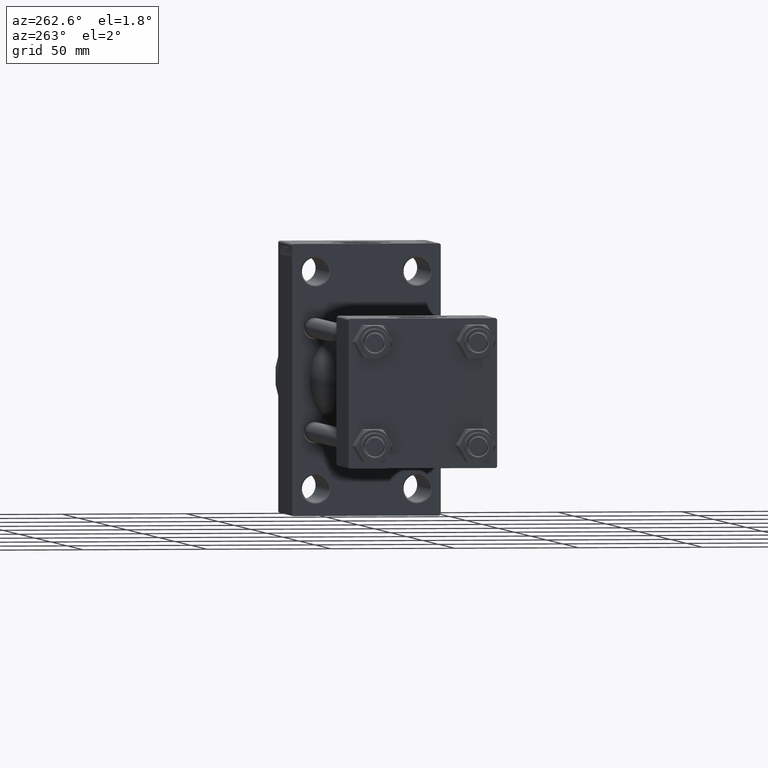
[diagram: clean part render]
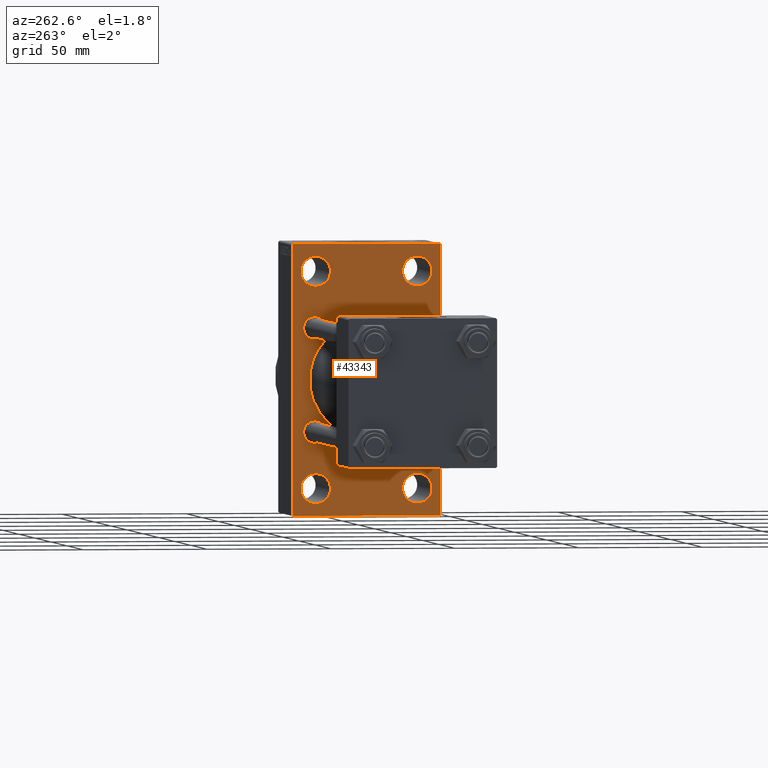
[diagram: same view with one face highlighted and labeled with its STEP entity id]
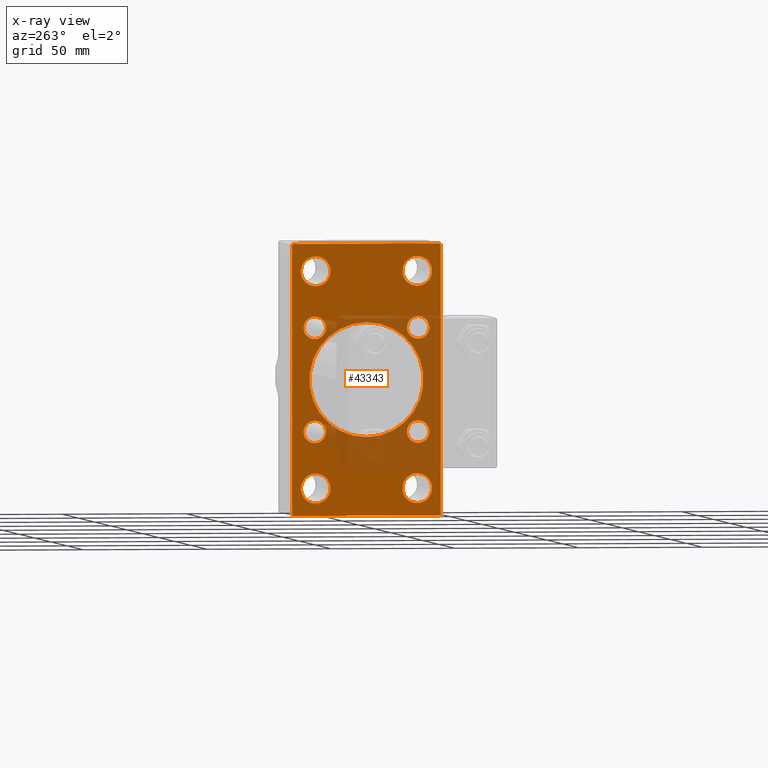
[diagram: x-ray of the same camera — body ghosted, the highlighted face saturated]
A machine part, auxiliary view. The second image highlights one B-rep face of the part: STEP entity #43343.
The next image is the same camera in x-ray: the body ghosted, the highlighted face saturated — about 28% of this face is hidden behind the body in this view.
In plain terms, the highlighted planar face has unit normal (-1, 0, 0).
Its self-contained STEP definition (entity closure, byte-faithful):
#171 = DIRECTION ( 'NONE',  ( 0.000000000000000000, 0.000000000000000000, 1.000000000000000000 ) ) ;
#345 = EDGE_CURVE ( 'NONE', #29232, #10350, #39507, .T. ) ;
#449 = CARTESIAN_POINT ( 'NONE',  ( 175.0000000000000284, -42.00000000000011369, 41.99999999999982236 ) ) ;
#450 = ORIENTED_EDGE ( 'NONE', *, *, #26110, .T. ) ;
#729 = CARTESIAN_POINT ( 'NONE',  ( 175.0000000000000284, -20.84999999999999076, -25.35000000000001208 ) ) ;
#839 = DIRECTION ( 'NONE',  ( 1.000000000000000000, -0.000000000000000000, 0.000000000000000000 ) ) ;
#892 = ORIENTED_EDGE ( 'NONE', *, *, #31131, .T. ) ;
#948 = DIRECTION ( 'NONE',  ( 0.000000000000000000, 0.000000000000000000, -1.000000000000000000 ) ) ;
#1075 = EDGE_CURVE ( 'NONE', #43916, #27153, #28132, .T. ) ;
#1077 = CARTESIAN_POINT ( 'NONE',  ( 175.0000000000000284, 20.50000000000000000, 43.50000000000000000 ) ) ;
#1102 = CARTESIAN_POINT ( 'NONE',  ( 175.0000000000000284, -20.84999999999999076, 25.35000000000001208 ) ) ;
#1122 = DIRECTION ( 'NONE',  ( 1.000000000000000000, -0.000000000000000000, 0.000000000000000000 ) ) ;
#1384 = ORIENTED_EDGE ( 'NONE', *, *, #38613, .F. ) ;
#1538 = CARTESIAN_POINT ( 'NONE',  ( 175.0000000000000284, -20.50000000000000000, -43.50000000000000000 ) ) ;
#1701 = ORIENTED_EDGE ( 'NONE', *, *, #45945, .F. ) ;
#2193 = VECTOR ( 'NONE', #8236, 1000.000000000000114 ) ;
#2218 = CARTESIAN_POINT ( 'NONE',  ( 175.0000000000000284, -20.50000000000000000, 49.49999999999983658 ) ) ;
#2221 = CIRCLE ( 'NONE', #35770, 4.500000000000007105 ) ;
#2291 = EDGE_LOOP ( 'NONE', ( #24079, #39312 ) ) ;
#2363 = ORIENTED_EDGE ( 'NONE', *, *, #24544, .T. ) ;
#2405 = CIRCLE ( 'NONE', #26065, 4.500000000000007105 ) ;
#2905 = CARTESIAN_POINT ( 'NONE',  ( 175.0000000000000284, -29.50000000000002842, 54.50000000000000000 ) ) ;
#3076 = LINE ( 'NONE', #6645, #25219 ) ;
#3255 = CIRCLE ( 'NONE', #7037, 5.999999999999838352 ) ;
#3401 = CARTESIAN_POINT ( 'NONE',  ( 175.0000000000000284, 2.146024240737016609E-16, -23.00000000000000000 ) ) ;
#3824 = CIRCLE ( 'NONE', #19868, 4.500000000000007105 ) ;
#4025 = CARTESIAN_POINT ( 'NONE',  ( 175.0000000000000284, 20.84999999999999787, -16.34999999999999432 ) ) ;
#4057 = CARTESIAN_POINT ( 'NONE',  ( 175.0000000000000284, 20.50000000000000000, 37.50000000000015632 ) ) ;
#4230 = FACE_BOUND ( 'NONE', #35631, .T. ) ;
#4266 = DIRECTION ( 'NONE',  ( -0.000000000000000000, 0.7071067811865450192, 0.7071067811865500152 ) ) ;
#4279 = DIRECTION ( 'NONE',  ( 0.000000000000000000, 0.000000000000000000, 1.000000000000000000 ) ) ;
#4286 = DIRECTION ( 'NONE',  ( 0.000000000000000000, 0.000000000000000000, 1.000000000000000000 ) ) ;
#4469 = CARTESIAN_POINT ( 'NONE',  ( 175.0000000000000284, 20.84999999999999787, -20.85000000000000142 ) ) ;
#5157 = FACE_BOUND ( 'NONE', #2291, .T. ) ;
#5417 = CIRCLE ( 'NONE', #13042, 4.500000000000007105 ) ;
#5539 = CARTESIAN_POINT ( 'NONE',  ( 175.0000000000000284, 29.99999999999999645, 54.49999999999999289 ) ) ;
#5849 = CARTESIAN_POINT ( 'NONE',  ( 175.0000000000000284, -2.602085213965210642E-15, 23.00000000000000000 ) ) ;
#5926 = VECTOR ( 'NONE', #11937, 1000.000000000000000 ) ;
#5956 = AXIS2_PLACEMENT_3D ( 'NONE', #1538, #839, #37851 ) ;
#6259 = LINE ( 'NONE', #25122, #16854 ) ;
#6373 = EDGE_CURVE ( 'NONE', #30341, #30819, #37384, .T. ) ;
#6409 = CIRCLE ( 'NONE', #14080, 5.999999999999838352 ) ;
#6645 = CARTESIAN_POINT ( 'NONE',  ( 175.0000000000000284, 29.99999999999999645, 54.49999999999999289 ) ) ;
#6792 = DIRECTION ( 'NONE',  ( 1.000000000000000000, -0.000000000000000000, 0.000000000000000000 ) ) ;
#6909 = EDGE_CURVE ( 'NONE', #38296, #31085, #43723, .T. ) ;
#7037 = AXIS2_PLACEMENT_3D ( 'NONE', #36455, #28119, #9969 ) ;
#7234 = CARTESIAN_POINT ( 'NONE',  ( 175.0000000000000284, -20.84999999999999076, -20.85000000000000497 ) ) ;
#7378 = LINE ( 'NONE', #449, #44192 ) ;
#7461 = AXIS2_PLACEMENT_3D ( 'NONE', #11712, #33432, #4286 ) ;
#7736 = VERTEX_POINT ( 'NONE', #729 ) ;
#7835 = EDGE_CURVE ( 'NONE', #44836, #24626, #32023, .T. ) ;
#8044 = EDGE_CURVE ( 'NONE', #8791, #12870, #7378, .T. ) ;
#8157 = DIRECTION ( 'NONE',  ( 0.000000000000000000, 0.000000000000000000, 1.000000000000000000 ) ) ;
#8236 = DIRECTION ( 'NONE',  ( -0.000000000000000000, -0.7071067811865474617, -0.7071067811865474617 ) ) ;
#8483 = DIRECTION ( 'NONE',  ( 0.000000000000000000, 0.000000000000000000, 1.000000000000000000 ) ) ;
#8516 = FACE_BOUND ( 'NONE', #27855, .T. ) ;
#8791 = VERTEX_POINT ( 'NONE', #35121 ) ;
#8989 = FACE_BOUND ( 'NONE', #36892, .T. ) ;
#9192 = CARTESIAN_POINT ( 'NONE',  ( 175.0000000000000284, -29.49999999999997513, -54.50000000000000000 ) ) ;
#9331 = CARTESIAN_POINT ( 'NONE',  ( 175.0000000000000284, 20.84999999999999787, 20.85000000000000142 ) ) ;
#9424 = CIRCLE ( 'NONE', #14043, 23.00000000000000000 ) ;
#9810 = DIRECTION ( 'NONE',  ( 0.000000000000000000, 0.000000000000000000, 1.000000000000000000 ) ) ;
#9969 = DIRECTION ( 'NONE',  ( 0.000000000000000000, 0.000000000000000000, 1.000000000000000000 ) ) ;
#10068 = VERTEX_POINT ( 'NONE', #12957 ) ;
#10350 = VERTEX_POINT ( 'NONE', #15078 ) ;
#11036 = VERTEX_POINT ( 'NONE', #13974 ) ;
#11219 = CARTESIAN_POINT ( 'NONE',  ( 175.0000000000000284, 29.50000000000002132, -54.49999999999999289 ) ) ;
#11449 = CIRCLE ( 'NONE', #16023, 5.999999999999838352 ) ;
#11533 = DIRECTION ( 'NONE',  ( 1.000000000000000000, -0.000000000000000000, 0.000000000000000000 ) ) ;
#11712 = CARTESIAN_POINT ( 'NONE',  ( 175.0000000000000284, 20.50000000000000000, -43.50000000000000000 ) ) ;
#11759 = DIRECTION ( 'NONE',  ( 1.000000000000000000, -0.000000000000000000, 0.000000000000000000 ) ) ;
#11937 = DIRECTION ( 'NONE',  ( 0.000000000000000000, -1.000000000000000000, -1.156482317317871478E-16 ) ) ;
#12113 = FACE_BOUND ( 'NONE', #42876, .T. ) ;
#12200 = AXIS2_PLACEMENT_3D ( 'NONE', #9331, #30841, #30348 ) ;
#12476 = DIRECTION ( 'NONE',  ( 0.000000000000000000, 0.000000000000000000, 1.000000000000000000 ) ) ;
#12564 = EDGE_CURVE ( 'NONE', #27153, #43916, #21479, .T. ) ;
#12585 = FACE_BOUND ( 'NONE', #46470, .T. ) ;
#12870 = VERTEX_POINT ( 'NONE', #2905 ) ;
#12957 = CARTESIAN_POINT ( 'NONE',  ( 175.0000000000000284, 20.50000000000000000, -49.49999999999983658 ) ) ;
#13042 = AXIS2_PLACEMENT_3D ( 'NONE', #13638, #38484, #9810 ) ;
#13279 = CARTESIAN_POINT ( 'NONE',  ( 175.0000000000000284, 20.50000000000000000, 43.50000000000000000 ) ) ;
#13638 = CARTESIAN_POINT ( 'NONE',  ( 175.0000000000000284, -20.84999999999999076, -20.85000000000000497 ) ) ;
#13974 = CARTESIAN_POINT ( 'NONE',  ( 175.0000000000000284, -20.84999999999999076, 16.34999999999999787 ) ) ;
#14043 = AXIS2_PLACEMENT_3D ( 'NONE', #37760, #30128, #19383 ) ;
#14080 = AXIS2_PLACEMENT_3D ( 'NONE', #18579, #19273, #171 ) ;
#14110 = DIRECTION ( 'NONE',  ( 0.000000000000000000, 0.000000000000000000, 1.000000000000000000 ) ) ;
#14931 = EDGE_LOOP ( 'NONE', ( #46692, #43280 ) ) ;
#14968 = CARTESIAN_POINT ( 'NONE',  ( 175.0000000000000284, 42.00000000000000711, -42.00000000000000711 ) ) ;
#15078 = CARTESIAN_POINT ( 'NONE',  ( 175.0000000000000284, -20.50000000000000000, -49.49999999999983658 ) ) ;
#15405 = AXIS2_PLACEMENT_3D ( 'NONE', #37253, #33680, #948 ) ;
#15501 = DIRECTION ( 'NONE',  ( 0.000000000000000000, -0.7071067811865352493, 0.7071067811865597852 ) ) ;
#15531 = CARTESIAN_POINT ( 'NONE',  ( 175.0000000000000284, 29.99999999999999645, -54.49999999999999289 ) ) ;
#15579 = CARTESIAN_POINT ( 'NONE',  ( 175.0000000000000284, -20.50000000000000000, -43.50000000000000000 ) ) ;
#15680 = CARTESIAN_POINT ( 'NONE',  ( 175.0000000000000284, 20.50000000000000000, 49.49999999999983658 ) ) ;
#15761 = VECTOR ( 'NONE', #17254, 1000.000000000000000 ) ;
#15979 = CARTESIAN_POINT ( 'NONE',  ( 175.0000000000000284, -20.50000000000000000, 37.50000000000015632 ) ) ;
#16023 = AXIS2_PLACEMENT_3D ( 'NONE', #15579, #11759, #26318 ) ;
#16044 = ORIENTED_EDGE ( 'NONE', *, *, #6909, .T. ) ;
#16158 = VERTEX_POINT ( 'NONE', #2218 ) ;
#16174 = VERTEX_POINT ( 'NONE', #3401 ) ;
#16374 = EDGE_CURVE ( 'NONE', #10350, #29232, #11449, .T. ) ;
#16854 = VECTOR ( 'NONE', #36581, 1000.000000000000000 ) ;
#17155 = ORIENTED_EDGE ( 'NONE', *, *, #1075, .T. ) ;
#17171 = ORIENTED_EDGE ( 'NONE', *, *, #32329, .T. ) ;
#17254 = DIRECTION ( 'NONE',  ( 0.000000000000000000, -1.000000000000000000, 1.156482317317871478E-16 ) ) ;
#17385 = ORIENTED_EDGE ( 'NONE', *, *, #16374, .T. ) ;
#18579 = CARTESIAN_POINT ( 'NONE',  ( 175.0000000000000284, -20.50000000000000000, 43.50000000000000000 ) ) ;
#18639 = EDGE_CURVE ( 'NONE', #25313, #36904, #2221, .T. ) ;
#19137 = CIRCLE ( 'NONE', #22215, 5.999999999999838352 ) ;
#19168 = DIRECTION ( 'NONE',  ( 1.000000000000000000, -0.000000000000000000, 0.000000000000000000 ) ) ;
#19273 = DIRECTION ( 'NONE',  ( 1.000000000000000000, -0.000000000000000000, 0.000000000000000000 ) ) ;
#19284 = FACE_BOUND ( 'NONE', #37986, .T. ) ;
#19383 = DIRECTION ( 'NONE',  ( 0.000000000000000000, 0.000000000000000000, -1.000000000000000000 ) ) ;
#19747 = PLANE ( 'NONE',  #30588 ) ;
#19843 = CARTESIAN_POINT ( 'NONE',  ( 175.0000000000000284, 29.49999999999996803, 54.49999999999999289 ) ) ;
#19868 = AXIS2_PLACEMENT_3D ( 'NONE', #45172, #44230, #12476 ) ;
#20152 = CARTESIAN_POINT ( 'NONE',  ( 175.0000000000000284, 29.99999999999999645, -54.00000000000002132 ) ) ;
#20460 = EDGE_CURVE ( 'NONE', #36904, #25313, #3824, .T. ) ;
#20869 = VERTEX_POINT ( 'NONE', #30328 ) ;
#21479 = CIRCLE ( 'NONE', #33677, 5.999999999999838352 ) ;
#21944 = EDGE_CURVE ( 'NONE', #41932, #30341, #3076, .T. ) ;
#22208 = ORIENTED_EDGE ( 'NONE', *, *, #45720, .T. ) ;
#22215 = AXIS2_PLACEMENT_3D ( 'NONE', #37016, #36781, #4279 ) ;
#23009 = LINE ( 'NONE', #30407, #27495 ) ;
#23242 = DIRECTION ( 'NONE',  ( 0.000000000000000000, 0.7071067811865474617, -0.7071067811865474617 ) ) ;
#24033 = CARTESIAN_POINT ( 'NONE',  ( 175.0000000000000284, -20.84999999999999076, 20.85000000000000497 ) ) ;
#24079 = ORIENTED_EDGE ( 'NONE', *, *, #42821, .T. ) ;
#24135 = VERTEX_POINT ( 'NONE', #28743 ) ;
#24169 = EDGE_CURVE ( 'NONE', #7736, #24135, #2405, .T. ) ;
#24544 = EDGE_CURVE ( 'NONE', #16174, #46821, #31425, .T. ) ;
#24626 = VERTEX_POINT ( 'NONE', #39368 ) ;
#25122 = CARTESIAN_POINT ( 'NONE',  ( 175.0000000000000284, -30.00000000000000000, 54.50000000000000000 ) ) ;
#25219 = VECTOR ( 'NONE', #43425, 1000.000000000000000 ) ;
#25313 = VERTEX_POINT ( 'NONE', #4025 ) ;
#25519 = CARTESIAN_POINT ( 'NONE',  ( 175.0000000000000284, 20.84999999999999787, -25.35000000000000853 ) ) ;
#26043 = ORIENTED_EDGE ( 'NONE', *, *, #8044, .T. ) ;
#26065 = AXIS2_PLACEMENT_3D ( 'NONE', #7234, #11533, #43996 ) ;
#26110 = EDGE_CURVE ( 'NONE', #46517, #16158, #3255, .T. ) ;
#26318 = DIRECTION ( 'NONE',  ( 0.000000000000000000, 0.000000000000000000, 1.000000000000000000 ) ) ;
#26447 = FACE_BOUND ( 'NONE', #46462, .T. ) ;
#26499 = AXIS2_PLACEMENT_3D ( 'NONE', #29445, #19168, #8157 ) ;
#26554 = VERTEX_POINT ( 'NONE', #19843 ) ;
#26888 = DIRECTION ( 'NONE',  ( 1.000000000000000000, -0.000000000000000000, 0.000000000000000000 ) ) ;
#26955 = CARTESIAN_POINT ( 'NONE',  ( 175.0000000000000284, -42.00000000000049738, -41.99999999999904077 ) ) ;
#27089 = CIRCLE ( 'NONE', #36213, 4.500000000000007105 ) ;
#27153 = VERTEX_POINT ( 'NONE', #15680 ) ;
#27157 = CARTESIAN_POINT ( 'NONE',  ( 175.0000000000000284, 0.000000000000000000, 0.000000000000000000 ) ) ;
#27201 = ORIENTED_EDGE ( 'NONE', *, *, #41785, .T. ) ;
#27345 = AXIS2_PLACEMENT_3D ( 'NONE', #13279, #6792, #27843 ) ;
#27495 = VECTOR ( 'NONE', #23242, 1000.000000000000114 ) ;
#27843 = DIRECTION ( 'NONE',  ( 0.000000000000000000, 0.000000000000000000, 1.000000000000000000 ) ) ;
#27855 = EDGE_LOOP ( 'NONE', ( #42714, #28632 ) ) ;
#28119 = DIRECTION ( 'NONE',  ( 1.000000000000000000, -0.000000000000000000, 0.000000000000000000 ) ) ;
#28132 = CIRCLE ( 'NONE', #27345, 5.999999999999838352 ) ;
#28632 = ORIENTED_EDGE ( 'NONE', *, *, #33858, .T. ) ;
#28743 = CARTESIAN_POINT ( 'NONE',  ( 175.0000000000000284, -20.84999999999999076, -16.34999999999999787 ) ) ;
#28942 = VECTOR ( 'NONE', #15501, 1000.000000000000000 ) ;
#29232 = VERTEX_POINT ( 'NONE', #32118 ) ;
#29445 = CARTESIAN_POINT ( 'NONE',  ( 175.0000000000000284, 20.84999999999999787, 20.85000000000000142 ) ) ;
#30055 = AXIS2_PLACEMENT_3D ( 'NONE', #24033, #38122, #30971 ) ;
#30128 = DIRECTION ( 'NONE',  ( 1.000000000000000000, 0.000000000000000000, 0.000000000000000000 ) ) ;
#30264 = ORIENTED_EDGE ( 'NONE', *, *, #20460, .T. ) ;
#30328 = CARTESIAN_POINT ( 'NONE',  ( 175.0000000000000284, 20.50000000000000000, -37.50000000000015632 ) ) ;
#30341 = VERTEX_POINT ( 'NONE', #20152 ) ;
#30348 = DIRECTION ( 'NONE',  ( 0.000000000000000000, 0.000000000000000000, 1.000000000000000000 ) ) ;
#30407 = CARTESIAN_POINT ( 'NONE',  ( 175.0000000000000284, 41.99999999999997158, 41.99999999999997158 ) ) ;
#30494 = FACE_OUTER_BOUND ( 'NONE', #31124, .T. ) ;
#30588 = AXIS2_PLACEMENT_3D ( 'NONE', #27157, #33372, #40771 ) ;
#30756 = DIRECTION ( 'NONE',  ( 0.000000000000000000, 0.000000000000000000, 1.000000000000000000 ) ) ;
#30819 = VERTEX_POINT ( 'NONE', #11219 ) ;
#30841 = DIRECTION ( 'NONE',  ( 1.000000000000000000, -0.000000000000000000, 0.000000000000000000 ) ) ;
#30971 = DIRECTION ( 'NONE',  ( 0.000000000000000000, 0.000000000000000000, 1.000000000000000000 ) ) ;
#31071 = VERTEX_POINT ( 'NONE', #1102 ) ;
#31085 = VERTEX_POINT ( 'NONE', #36476 ) ;
#31110 = LINE ( 'NONE', #5539, #15761 ) ;
#31124 = EDGE_LOOP ( 'NONE', ( #35747, #16044, #1701, #26043, #1384, #22208, #40477, #45902 ) ) ;
#31131 = EDGE_CURVE ( 'NONE', #16158, #46517, #6409, .T. ) ;
#31425 = CIRCLE ( 'NONE', #15405, 23.00000000000000000 ) ;
#32023 = CIRCLE ( 'NONE', #12200, 4.500000000000007105 ) ;
#32118 = CARTESIAN_POINT ( 'NONE',  ( 175.0000000000000284, -20.50000000000000000, -37.50000000000015632 ) ) ;
#32329 = EDGE_CURVE ( 'NONE', #46821, #16174, #9424, .T. ) ;
#32969 = ORIENTED_EDGE ( 'NONE', *, *, #42967, .T. ) ;
#33372 = DIRECTION ( 'NONE',  ( -1.000000000000000000, 0.000000000000000000, -0.000000000000000000 ) ) ;
#33432 = DIRECTION ( 'NONE',  ( 1.000000000000000000, -0.000000000000000000, 0.000000000000000000 ) ) ;
#33677 = AXIS2_PLACEMENT_3D ( 'NONE', #1077, #26888, #8483 ) ;
#33680 = DIRECTION ( 'NONE',  ( 1.000000000000000000, 0.000000000000000000, 0.000000000000000000 ) ) ;
#33858 = EDGE_CURVE ( 'NONE', #11036, #31071, #43771, .T. ) ;
#35121 = CARTESIAN_POINT ( 'NONE',  ( 175.0000000000000284, -30.00000000000000000, 54.00000000000002842 ) ) ;
#35151 = ORIENTED_EDGE ( 'NONE', *, *, #18639, .T. ) ;
#35631 = EDGE_LOOP ( 'NONE', ( #35151, #30264 ) ) ;
#35747 = ORIENTED_EDGE ( 'NONE', *, *, #41958, .T. ) ;
#35770 = AXIS2_PLACEMENT_3D ( 'NONE', #4469, #1122, #30756 ) ;
#35909 = EDGE_CURVE ( 'NONE', #31071, #11036, #27089, .T. ) ;
#36003 = ORIENTED_EDGE ( 'NONE', *, *, #12564, .T. ) ;
#36058 = DIRECTION ( 'NONE',  ( 1.000000000000000000, -0.000000000000000000, 0.000000000000000000 ) ) ;
#36213 = AXIS2_PLACEMENT_3D ( 'NONE', #46561, #36058, #14110 ) ;
#36455 = CARTESIAN_POINT ( 'NONE',  ( 175.0000000000000284, -20.50000000000000000, 43.50000000000000000 ) ) ;
#36476 = CARTESIAN_POINT ( 'NONE',  ( 175.0000000000000284, -30.00000000000000000, -53.99999999999995737 ) ) ;
#36581 = DIRECTION ( 'NONE',  ( 0.000000000000000000, 0.000000000000000000, -1.000000000000000000 ) ) ;
#36781 = DIRECTION ( 'NONE',  ( 1.000000000000000000, -0.000000000000000000, 0.000000000000000000 ) ) ;
#36892 = EDGE_LOOP ( 'NONE', ( #36003, #17155 ) ) ;
#36904 = VERTEX_POINT ( 'NONE', #25519 ) ;
#37016 = CARTESIAN_POINT ( 'NONE',  ( 175.0000000000000284, 20.50000000000000000, -43.50000000000000000 ) ) ;
#37253 = CARTESIAN_POINT ( 'NONE',  ( 175.0000000000000284, -2.602085213965210642E-15, 0.000000000000000000 ) ) ;
#37384 = LINE ( 'NONE', #14968, #2193 ) ;
#37427 = FACE_BOUND ( 'NONE', #14931, .T. ) ;
#37760 = CARTESIAN_POINT ( 'NONE',  ( 175.0000000000000284, -2.602085213965210642E-15, 0.000000000000000000 ) ) ;
#37851 = DIRECTION ( 'NONE',  ( 0.000000000000000000, 0.000000000000000000, 1.000000000000000000 ) ) ;
#37986 = EDGE_LOOP ( 'NONE', ( #17171, #2363 ) ) ;
#38122 = DIRECTION ( 'NONE',  ( 1.000000000000000000, -0.000000000000000000, 0.000000000000000000 ) ) ;
#38296 = VERTEX_POINT ( 'NONE', #9192 ) ;
#38484 = DIRECTION ( 'NONE',  ( 1.000000000000000000, -0.000000000000000000, 0.000000000000000000 ) ) ;
#38613 = EDGE_CURVE ( 'NONE', #26554, #12870, #31110, .T. ) ;
#39021 = CARTESIAN_POINT ( 'NONE',  ( 175.0000000000000284, 20.84999999999999787, 25.35000000000000853 ) ) ;
#39312 = ORIENTED_EDGE ( 'NONE', *, *, #24169, .T. ) ;
#39368 = CARTESIAN_POINT ( 'NONE',  ( 175.0000000000000284, 20.84999999999999787, 16.34999999999999432 ) ) ;
#39507 = CIRCLE ( 'NONE', #5956, 5.999999999999838352 ) ;
#40477 = ORIENTED_EDGE ( 'NONE', *, *, #21944, .T. ) ;
#40771 = DIRECTION ( 'NONE',  ( -0.000000000000000000, 0.000000000000000000, 1.000000000000000000 ) ) ;
#41061 = CARTESIAN_POINT ( 'NONE',  ( 175.0000000000000284, 29.99999999999999645, 53.99999999999996447 ) ) ;
#41455 = EDGE_CURVE ( 'NONE', #24626, #44836, #47065, .T. ) ;
#41785 = EDGE_CURVE ( 'NONE', #10068, #20869, #42536, .T. ) ;
#41932 = VERTEX_POINT ( 'NONE', #41061 ) ;
#41958 = EDGE_CURVE ( 'NONE', #30819, #38296, #42006, .T. ) ;
#42006 = LINE ( 'NONE', #15531, #5926 ) ;
#42536 = CIRCLE ( 'NONE', #7461, 5.999999999999838352 ) ;
#42714 = ORIENTED_EDGE ( 'NONE', *, *, #35909, .T. ) ;
#42821 = EDGE_CURVE ( 'NONE', #24135, #7736, #5417, .T. ) ;
#42876 = EDGE_LOOP ( 'NONE', ( #45522, #17385 ) ) ;
#42967 = EDGE_CURVE ( 'NONE', #20869, #10068, #19137, .T. ) ;
#43280 = ORIENTED_EDGE ( 'NONE', *, *, #41455, .T. ) ;
#43343 = ADVANCED_FACE ( 'NONE', ( #26447, #12113, #12585, #8989, #8516, #37427, #4230, #5157, #19284, #30494 ), #19747, .T. ) ;
#43425 = DIRECTION ( 'NONE',  ( 0.000000000000000000, 0.000000000000000000, -1.000000000000000000 ) ) ;
#43723 = LINE ( 'NONE', #26955, #28942 ) ;
#43771 = CIRCLE ( 'NONE', #30055, 4.500000000000007105 ) ;
#43916 = VERTEX_POINT ( 'NONE', #4057 ) ;
#43996 = DIRECTION ( 'NONE',  ( 0.000000000000000000, 0.000000000000000000, 1.000000000000000000 ) ) ;
#44192 = VECTOR ( 'NONE', #4266, 1000.000000000000000 ) ;
#44230 = DIRECTION ( 'NONE',  ( 1.000000000000000000, -0.000000000000000000, 0.000000000000000000 ) ) ;
#44836 = VERTEX_POINT ( 'NONE', #39021 ) ;
#45172 = CARTESIAN_POINT ( 'NONE',  ( 175.0000000000000284, 20.84999999999999787, -20.85000000000000142 ) ) ;
#45522 = ORIENTED_EDGE ( 'NONE', *, *, #345, .T. ) ;
#45720 = EDGE_CURVE ( 'NONE', #26554, #41932, #23009, .T. ) ;
#45902 = ORIENTED_EDGE ( 'NONE', *, *, #6373, .T. ) ;
#45945 = EDGE_CURVE ( 'NONE', #8791, #31085, #6259, .T. ) ;
#46462 = EDGE_LOOP ( 'NONE', ( #892, #450 ) ) ;
#46470 = EDGE_LOOP ( 'NONE', ( #32969, #27201 ) ) ;
#46517 = VERTEX_POINT ( 'NONE', #15979 ) ;
#46561 = CARTESIAN_POINT ( 'NONE',  ( 175.0000000000000284, -20.84999999999999076, 20.85000000000000497 ) ) ;
#46692 = ORIENTED_EDGE ( 'NONE', *, *, #7835, .T. ) ;
#46821 = VERTEX_POINT ( 'NONE', #5849 ) ;
#47065 = CIRCLE ( 'NONE', #26499, 4.500000000000007105 ) ;